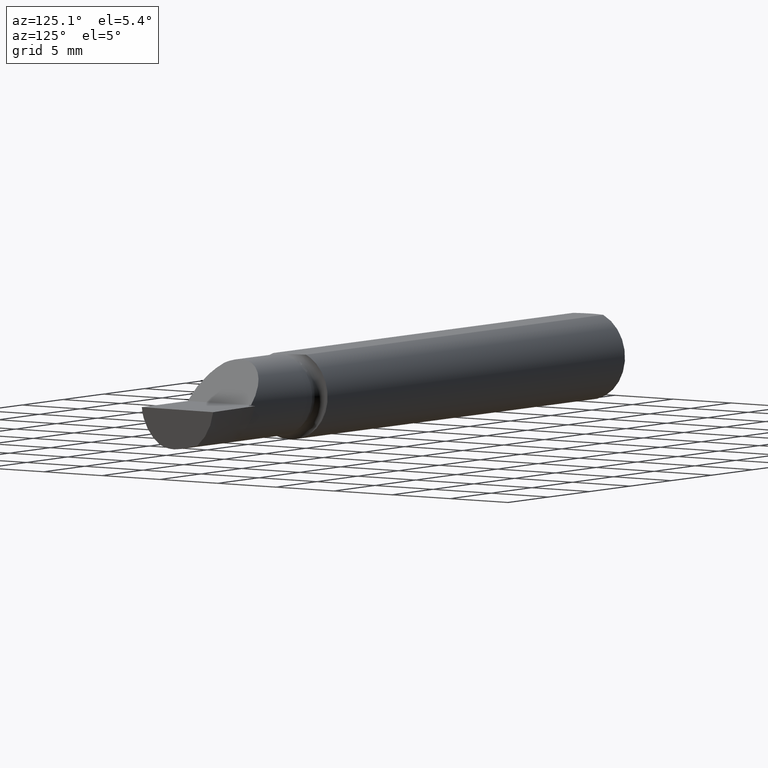
[diagram: clean part render]
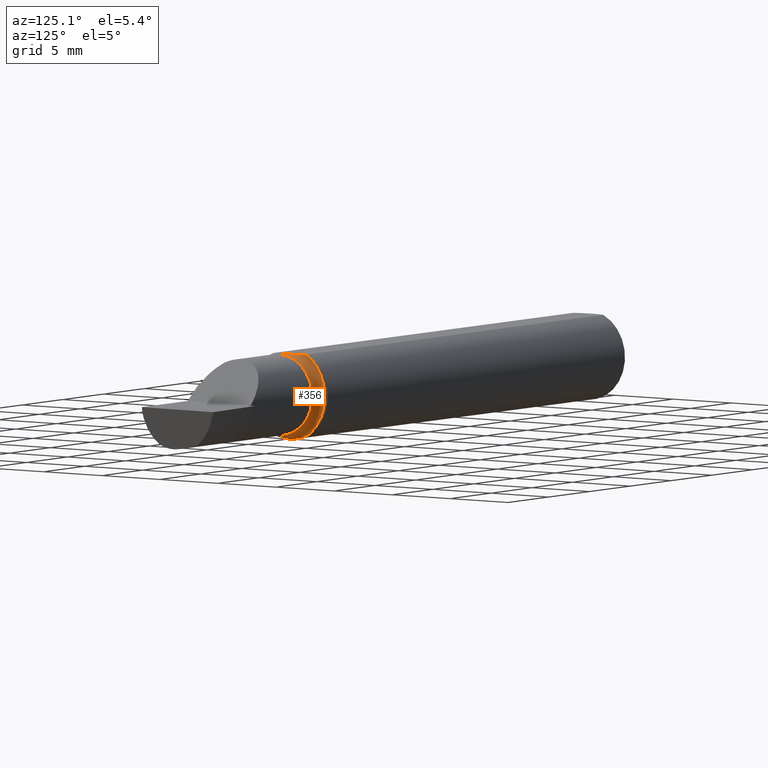
[diagram: same view with one face highlighted and labeled with its STEP entity id]
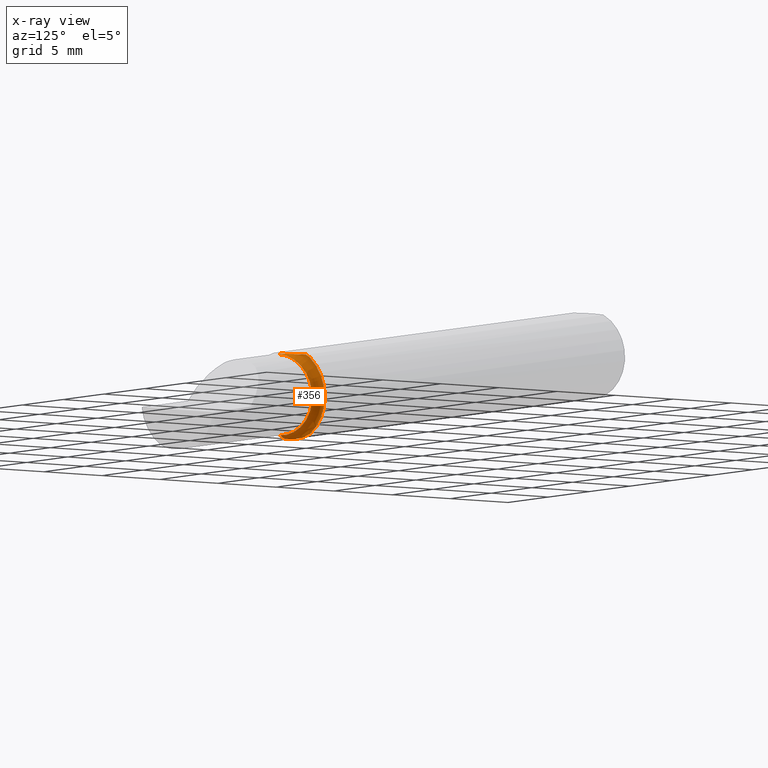
[diagram: x-ray of the same camera — body ghosted, the highlighted face saturated]
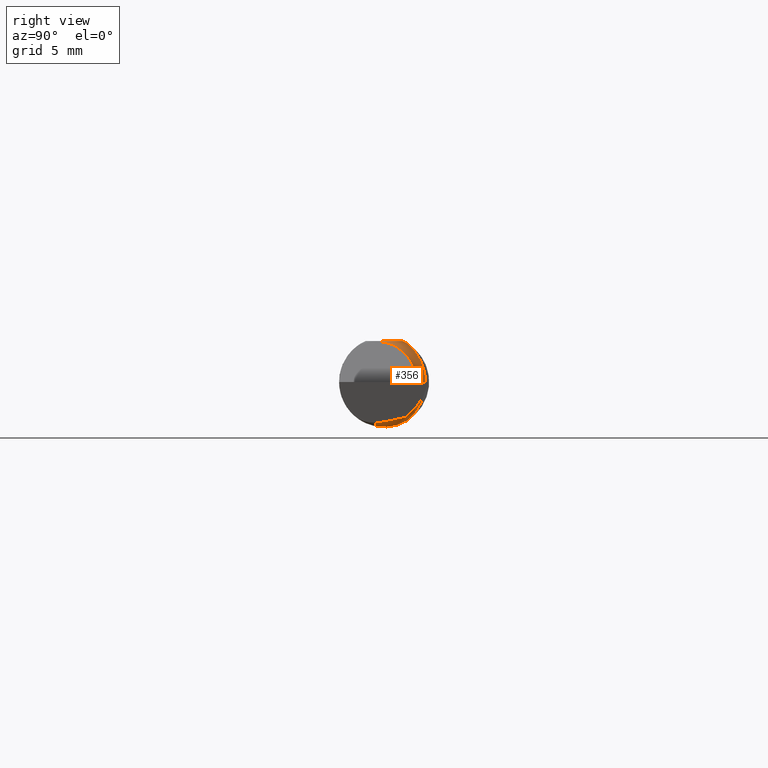
[diagram: same view with one face highlighted and labeled with its STEP entity id]
A machine part, auxiliary view. The second image highlights one B-rep face of the part: STEP entity #356.
The next image is the same camera in x-ray: the body ghosted, the highlighted face saturated — about 0% of this face is hidden behind the body in this view.
A second angle (right view) of the same face is appended — the face is thin or edge-on in the first view.
In plain terms, the highlighted toroidal blend (fillet) surface has major radius 3.509 mm and minor (blend) radius 0.635 mm.
Its self-contained STEP definition (entity closure, byte-faithful):
#8 = CARTESIAN_POINT ( 'NONE',  ( 1.450070113884647682, 0.05116999800896462891, -0.1141369429496938703 ) ) ;
#39 = EDGE_LOOP ( 'NONE', ( #302, #258, #339, #649, #741, #710, #236 ) ) ;
#44 = CARTESIAN_POINT ( 'NONE',  ( 1.456194170315906700, 0.01966653246187217291, 0.1138500000000000068 ) ) ;
#61 = CARTESIAN_POINT ( 'NONE',  ( 1.469125478741955426, -0.01974817578328879122, 0.1138500000000000068 ) ) ;
#62 = DIRECTION ( 'NONE',  ( -1.000000000000000000, -0.000000000000000000, -0.000000000000000000 ) ) ;
#65 = DIRECTION ( 'NONE',  ( 0.000000000000000000, -1.000000000000000000, 0.000000000000000000 ) ) ;
#72 = CARTESIAN_POINT ( 'NONE',  ( 1.450099858026828503, 0.05124158467494938085, 0.1138499999999999790 ) ) ;
#79 = B_SPLINE_CURVE_WITH_KNOTS ( 'NONE', 3,
 ( #173, #397, #634, #325, #44, #271, #217, #439, #695, #574, #61, #406 ),
 .UNSPECIFIED., .F., .F.,
 ( 4, 2, 2, 2, 2, 4 ),
 ( 0.01180676251349892063, 0.01228781726753095695, 0.01276887202156299500, 0.01324992677559503132, 0.01349045415261104948, 0.01373098152962706764 ),
 .UNSPECIFIED. ) ;
#86 = EDGE_CURVE ( 'NONE', #609, #130, #535, .T. ) ;
#88 = VERTEX_POINT ( 'NONE', #72 ) ;
#100 = CARTESIAN_POINT ( 'NONE',  ( 1.449999999999999512, 0.05806958520228852616, -0.1107817841451746860 ) ) ;
#106 = CARTESIAN_POINT ( 'NONE',  ( 1.455335200714347854, -0.02300000000004108133, -0.1227131716646510246 ) ) ;
#110 = DIRECTION ( 'NONE',  ( 0.000000000000000000, 0.000000000000000000, 1.000000000000000000 ) ) ;
#116 = CIRCLE ( 'NONE', #736, 0.1131499999999999589 ) ;
#128 = CIRCLE ( 'NONE', #575, 0.02499999999999993894 ) ;
#130 = VERTEX_POINT ( 'NONE', #592 ) ;
#173 = CARTESIAN_POINT ( 'NONE',  ( 1.450099858026828503, 0.05124158467494938085, 0.1138499999999999790 ) ) ;
#195 = CARTESIAN_POINT ( 'NONE',  ( 1.449999999999999512, -0.02299999999999999961, 0.000000000000000000 ) ) ;
#198 = DIRECTION ( 'NONE',  ( 0.000000000000000000, -1.707404996040168702E-16, 1.000000000000000000 ) ) ;
#217 = CARTESIAN_POINT ( 'NONE',  ( 1.462649919956250821, 0.001411420734820286686, 0.1138499999999999790 ) ) ;
#221 = CARTESIAN_POINT ( 'NONE',  ( 1.450676465447388930, 0.02961761747730576322, -0.1215215819150392701 ) ) ;
#233 = VERTEX_POINT ( 'NONE', #627 ) ;
#235 = DIRECTION ( 'NONE',  ( 0.000000000000000000, 0.000000000000000000, 1.000000000000000000 ) ) ;
#236 = ORIENTED_EDGE ( 'NONE', *, *, #371, .T. ) ;
#238 = TOROIDAL_SURFACE ( 'NONE', #330, 0.1381499999999998840, 0.02499999999999992853 ) ;
#242 = DIRECTION ( 'NONE',  ( 0.000000000000000000, 0.000000000000000000, 1.000000000000000000 ) ) ;
#243 = CARTESIAN_POINT ( 'NONE',  ( 1.450099858026828503, 0.05124158467494938085, 0.1138499999999999790 ) ) ;
#249 = CIRCLE ( 'NONE', #668, 0.02499999999999993894 ) ;
#258 = ORIENTED_EDGE ( 'NONE', *, *, #430, .T. ) ;
#261 = VERTEX_POINT ( 'NONE', #553 ) ;
#269 = VERTEX_POINT ( 'NONE', #689 ) ;
#271 = CARTESIAN_POINT ( 'NONE',  ( 1.460335521868628916, 0.007462837152791067935, 0.1138500000000000206 ) ) ;
#291 = DIRECTION ( 'NONE',  ( 0.000000000000000000, 0.000000000000000000, -1.000000000000000000 ) ) ;
#302 = ORIENTED_EDGE ( 'NONE', *, *, #697, .F. ) ;
#311 = CARTESIAN_POINT ( 'NONE',  ( 1.474999999999999423, -0.02299999999999998226, -0.1381499999999998840 ) ) ;
#313 = AXIS2_PLACEMENT_3D ( 'NONE', #195, #362, #242 ) ;
#325 = CARTESIAN_POINT ( 'NONE',  ( 1.454329718837755747, 0.02583075694165800143, 0.1138499999999999512 ) ) ;
#330 = AXIS2_PLACEMENT_3D ( 'NONE', #693, #463, #110 ) ;
#332 = EDGE_CURVE ( 'NONE', #407, #233, #249, .T. ) ;
#339 = ORIENTED_EDGE ( 'NONE', *, *, #86, .F. ) ;
#345 = CARTESIAN_POINT ( 'NONE',  ( 1.474999999999999423, -0.02299999999999999961, 0.000000000000000000 ) ) ;
#349 = CARTESIAN_POINT ( 'NONE',  ( 1.469125478742641988, -0.02299999999992861921, 0.1138499999999999790 ) ) ;
#354 = CARTESIAN_POINT ( 'NONE',  ( 1.449999999999999512, 0.06454130434782547054, 0.1068734884481711278 ) ) ;
#356 = ADVANCED_FACE ( 'NONE', ( #519 ), #238, .F. ) ;
#362 = DIRECTION ( 'NONE',  ( -1.000000000000000000, -0.000000000000000000, -0.000000000000000000 ) ) ;
#371 = EDGE_CURVE ( 'NONE', #233, #261, #116, .T. ) ;
#397 = CARTESIAN_POINT ( 'NONE',  ( 1.450413920054870465, 0.04482795582615921315, 0.1138500000000000068 ) ) ;
#406 = CARTESIAN_POINT ( 'NONE',  ( 1.469125478742641988, -0.02299999999992861921, 0.1138499999999999790 ) ) ;
#407 = VERTEX_POINT ( 'NONE', #349 ) ;
#430 = EDGE_CURVE ( 'NONE', #269, #130, #440, .T. ) ;
#439 = CARTESIAN_POINT ( 'NONE',  ( 1.465849677403787688, -0.007551878619868967503, 0.1138500000000000068 ) ) ;
#440 = B_SPLINE_CURVE_WITH_KNOTS ( 'NONE', 3,
 ( #106, #571, #556, #688, #552, #221, #676, #8, #100, #443 ),
 .UNSPECIFIED., .F., .F.,
 ( 4, 2, 2, 2, 4 ),
 ( 0.001521100526781991131, 0.002110397936654620152, 0.002699695346527249389, 0.003288992756399878627, 0.003878290166272508298 ),
 .UNSPECIFIED. ) ;
#443 = CARTESIAN_POINT ( 'NONE',  ( 1.449999999999999512, 0.06454130434782547054, -0.1068734884481711278 ) ) ;
#463 = DIRECTION ( 'NONE',  ( -1.000000000000000000, -0.000000000000000000, -0.000000000000000000 ) ) ;
#482 = DIRECTION ( 'NONE',  ( -0.000000000000000000, 1.000000000000000000, 1.224646799147353207E-16 ) ) ;
#506 = EDGE_CURVE ( 'NONE', #88, #407, #79, .T. ) ;
#519 = FACE_OUTER_BOUND ( 'NONE', #39, .T. ) ;
#521 = CARTESIAN_POINT ( 'NONE',  ( 1.449999999999999512, 0.06454130434782547054, 0.1068734884481711278 ) ) ;
#526 = CARTESIAN_POINT ( 'NONE',  ( 1.450030458199239591, 0.05581632220536737743, 0.1117910030695636048 ) ) ;
#535 = CIRCLE ( 'NONE', #313, 0.1381499999999998840 ) ;
#552 = CARTESIAN_POINT ( 'NONE',  ( 1.451467975534315835, 0.01473518199411240868, -0.1242077797392981964 ) ) ;
#553 = CARTESIAN_POINT ( 'NONE',  ( 1.474999999999999423, -0.02299999999999998226, -0.1131499999999999589 ) ) ;
#556 = CARTESIAN_POINT ( 'NONE',  ( 1.453389452405299931, -0.008074243560935950512, -0.1248184701859548634 ) ) ;
#571 = CARTESIAN_POINT ( 'NONE',  ( 1.454242904322845531, -0.01557604574182089655, -0.1241046355606870988 ) ) ;
#574 = CARTESIAN_POINT ( 'NONE',  ( 1.468528558870396905, -0.01664413276230341035, 0.1138500000000000206 ) ) ;
#575 = AXIS2_PLACEMENT_3D ( 'NONE', #311, #482, #198 ) ;
#584 = CARTESIAN_POINT ( 'NONE',  ( 1.449999999999869171, 0.06027459455596664156, 0.1094501706472726377 ) ) ;
#592 = CARTESIAN_POINT ( 'NONE',  ( 1.449999999999999512, 0.06454130434782547054, -0.1068734884481711278 ) ) ;
#609 = VERTEX_POINT ( 'NONE', #521 ) ;
#627 = CARTESIAN_POINT ( 'NONE',  ( 1.474999999999999423, -0.02299999999999999961, 0.1131499999999999589 ) ) ;
#634 = CARTESIAN_POINT ( 'NONE',  ( 1.451439432581650868, 0.03841286295236275017, 0.1138500000000000068 ) ) ;
#649 = ORIENTED_EDGE ( 'NONE', *, *, #652, .T. ) ;
#652 = EDGE_CURVE ( 'NONE', #609, #88, #700, .T. ) ;
#668 = AXIS2_PLACEMENT_3D ( 'NONE', #696, #65, #291 ) ;
#676 = CARTESIAN_POINT ( 'NONE',  ( 1.450410143100064886, 0.03690665551785218129, -0.1195136361283753307 ) ) ;
#688 = CARTESIAN_POINT ( 'NONE',  ( 1.451999861108085987, 0.007067814084697380574, -0.1248795015713450862 ) ) ;
#689 = CARTESIAN_POINT ( 'NONE',  ( 1.455335200714347854, -0.02300000000004108133, -0.1227131716646510246 ) ) ;
#693 = CARTESIAN_POINT ( 'NONE',  ( 1.474999999999999423, -0.02299999999999999961, 0.000000000000000000 ) ) ;
#695 = CARTESIAN_POINT ( 'NONE',  ( 1.466883333493380404, -0.01054779757992718205, 0.1138500000000000068 ) ) ;
#696 = CARTESIAN_POINT ( 'NONE',  ( 1.474999999999999423, -0.02299999999999999961, 0.1381499999999998840 ) ) ;
#697 = EDGE_CURVE ( 'NONE', #269, #261, #128, .T. ) ;
#700 = B_SPLINE_CURVE_WITH_KNOTS ( 'NONE', 3,
 ( #354, #584, #526, #243 ),
 .UNSPECIFIED., .F., .F.,
 ( 4, 4 ),
 ( 0.001992421650418976786, 0.002369287530977968060 ),
 .UNSPECIFIED. ) ;
#710 = ORIENTED_EDGE ( 'NONE', *, *, #332, .T. ) ;
#736 = AXIS2_PLACEMENT_3D ( 'NONE', #345, #62, #235 ) ;
#741 = ORIENTED_EDGE ( 'NONE', *, *, #506, .T. ) ;